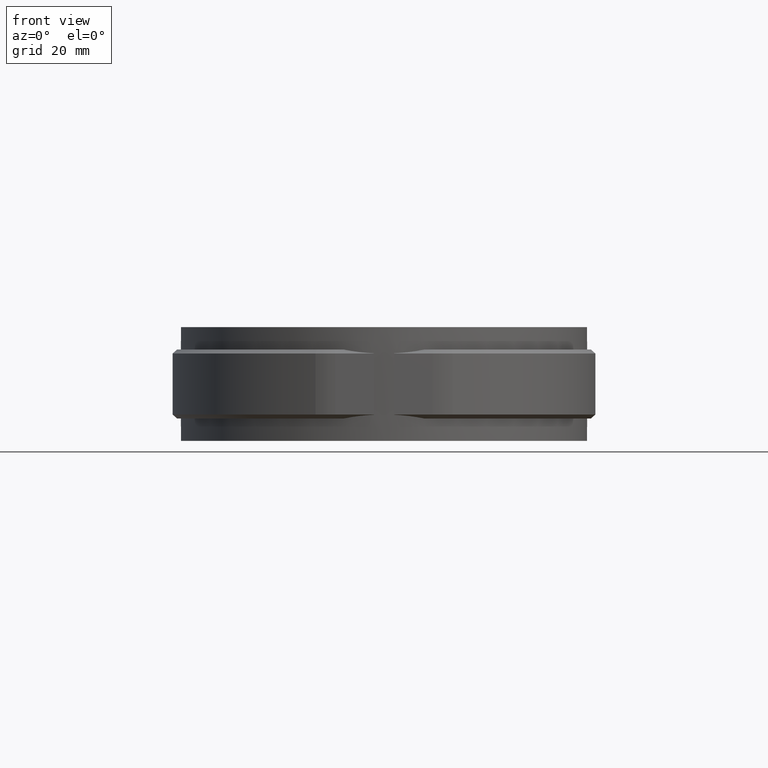
[diagram: clean part render]
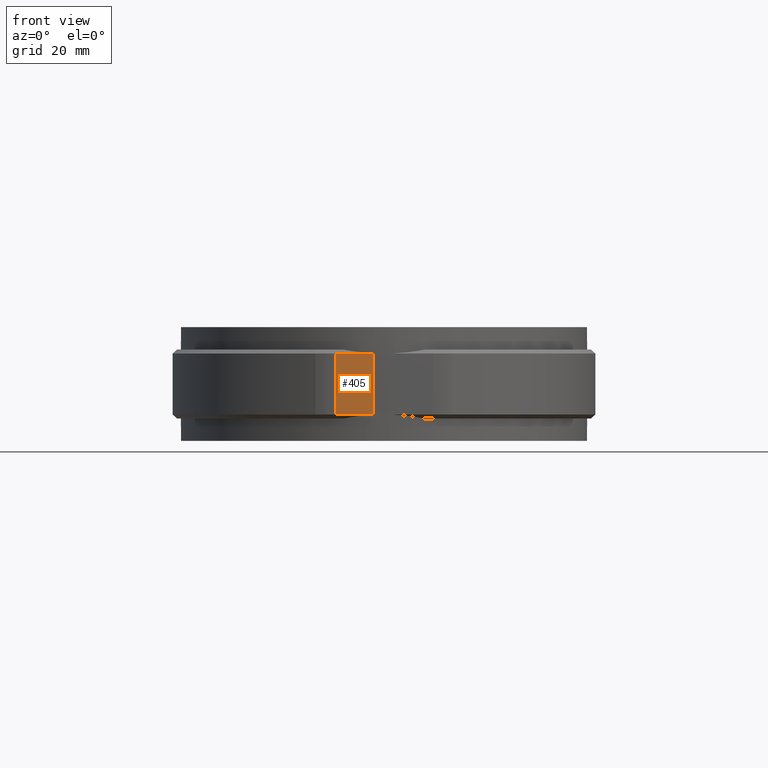
[diagram: same view with one face highlighted and labeled with its STEP entity id]
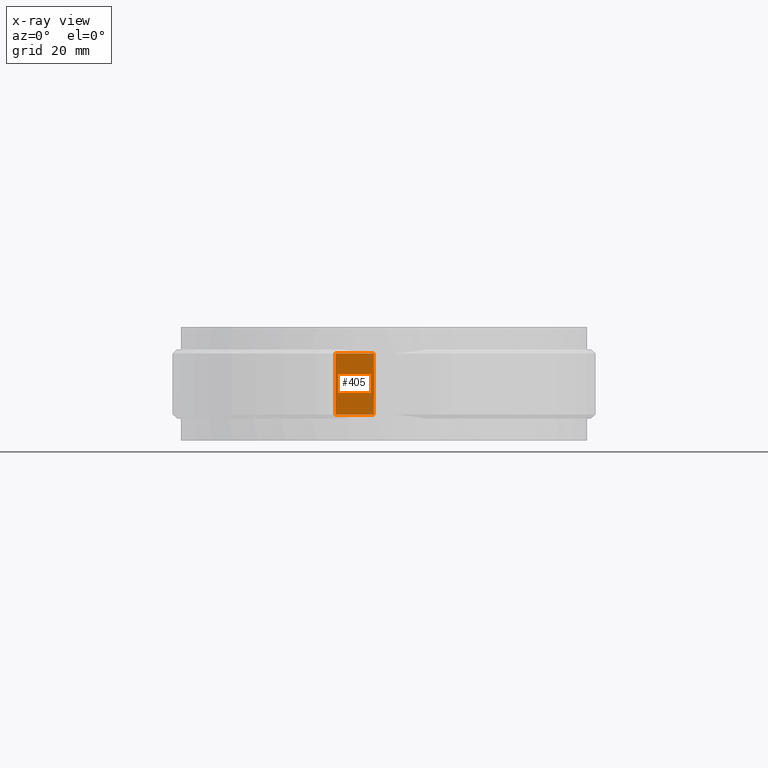
[diagram: x-ray of the same camera — body ghosted, the highlighted face saturated]
A machine part, front view. The second image highlights one B-rep face of the part: STEP entity #405.
The next image is the same camera in x-ray: the body ghosted, the highlighted face saturated — about 0% of this face is hidden behind the body in this view.
In plain terms, the highlighted planar face has unit normal (-0, -1, 0).
Its self-contained STEP definition (entity closure, byte-faithful):
#405 = ADVANCED_FACE( '', ( #704 ), #705, .T. );
#704 = FACE_OUTER_BOUND( '', #1676, .T. );
#705 = PLANE( '', #1677 );
#1676 = EDGE_LOOP( '', ( #3230, #3231, #3232, #3233 ) );
#1677 = AXIS2_PLACEMENT_3D( '', #3234, #3235, #3236 );
#3230 = ORIENTED_EDGE( '', *, *, #4317, .T. );
#3231 = ORIENTED_EDGE( '', *, *, #4329, .T. );
#3232 = ORIENTED_EDGE( '', *, *, #4326, .F. );
#3233 = ORIENTED_EDGE( '', *, *, #4257, .T. );
#3234 = CARTESIAN_POINT( '', ( -12.0083304418225, -50.0500000000000, -8.50000000000000 ) );
#3235 = DIRECTION( '', ( -1.38777878078145E-017, -1.00000000000000, 0.000000000000000 ) );
#3236 = DIRECTION( '', ( -1.00000000000000, 1.38777878078145E-017, 0.000000000000000 ) );
#4257 = EDGE_CURVE( '', #4922, #4929, #4931, .T. );
#4317 = EDGE_CURVE( '', #4929, #5032, #5034, .T. );
#4326 = EDGE_CURVE( '', #4922, #5048, #5049, .T. );
#4329 = EDGE_CURVE( '', #5032, #5048, #5052, .T. );
#4922 = VERTEX_POINT( '', #7548 );
#4929 = VERTEX_POINT( '', #7557 );
#4931 = LINE( '', #7560, #7561 );
#5032 = VERTEX_POINT( '', #7711 );
#5034 = LINE( '', #7714, #7715 );
#5048 = VERTEX_POINT( '', #7731 );
#5049 = LINE( '', #7732, #7733 );
#5052 = LINE( '', #7736, #7737 );
#7548 = CARTESIAN_POINT( '', ( -12.0083304418225, -50.0500000000000, -7.50000000000000 ) );
#7557 = CARTESIAN_POINT( '', ( -2.50000000000000, -50.0500000000000, -7.50000000000000 ) );
#7560 = CARTESIAN_POINT( '', ( -2.50000000000000, -50.0500000000000, -7.50000000000000 ) );
#7561 = VECTOR( '', #8509, 1000.00000000000 );
#7711 = CARTESIAN_POINT( '', ( -2.50000000000000, -50.0500000000000, 7.50000000000001 ) );
#7714 = CARTESIAN_POINT( '', ( -2.50000000000000, -50.0500000000000, -8.50000000000000 ) );
#7715 = VECTOR( '', #8599, 1000.00000000000 );
#7731 = CARTESIAN_POINT( '', ( -12.0083304418225, -50.0500000000000, 7.50000000000001 ) );
#7732 = CARTESIAN_POINT( '', ( -12.0083304418225, -50.0500000000000, -8.50000000000000 ) );
#7733 = VECTOR( '', #8620, 1000.00000000000 );
#7736 = CARTESIAN_POINT( '', ( -12.0083304418225, -50.0500000000000, 7.50000000000000 ) );
#7737 = VECTOR( '', #8627, 1000.00000000000 );
#8509 = DIRECTION( '', ( 1.00000000000000, -1.38777878078145E-017, 0.000000000000000 ) );
#8599 = DIRECTION( '', ( 0.000000000000000, 0.000000000000000, 1.00000000000000 ) );
#8620 = DIRECTION( '', ( 0.000000000000000, 0.000000000000000, 1.00000000000000 ) );
#8627 = DIRECTION( '', ( -1.00000000000000, 1.38777878078145E-017, 0.000000000000000 ) );